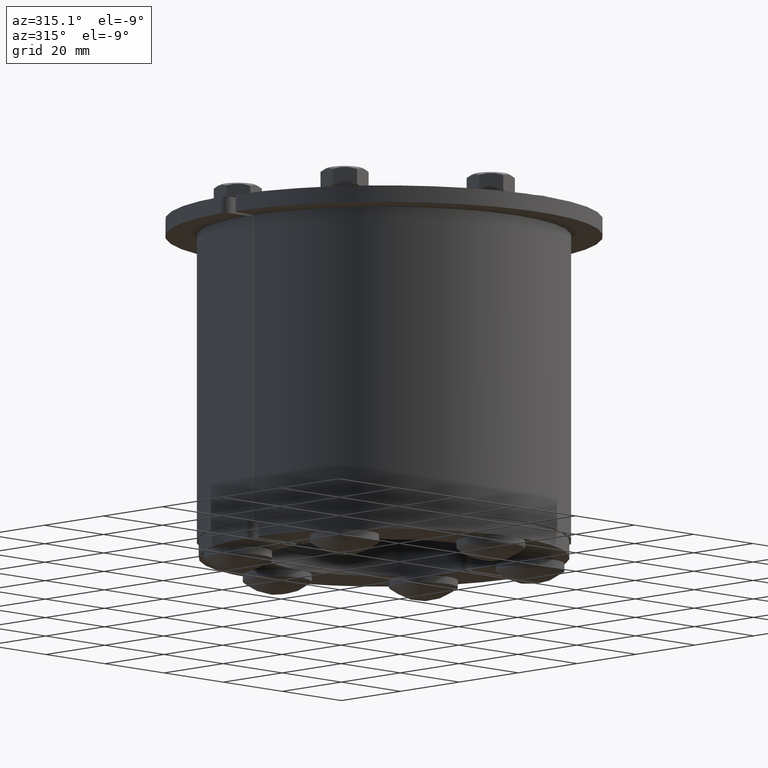
[diagram: clean part render]
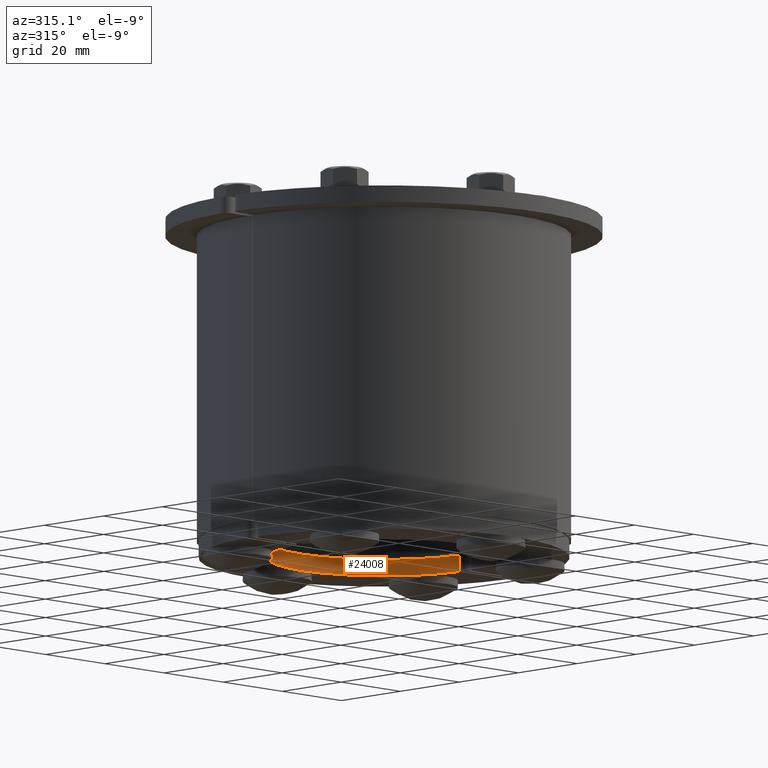
[diagram: same view with one face highlighted and labeled with its STEP entity id]
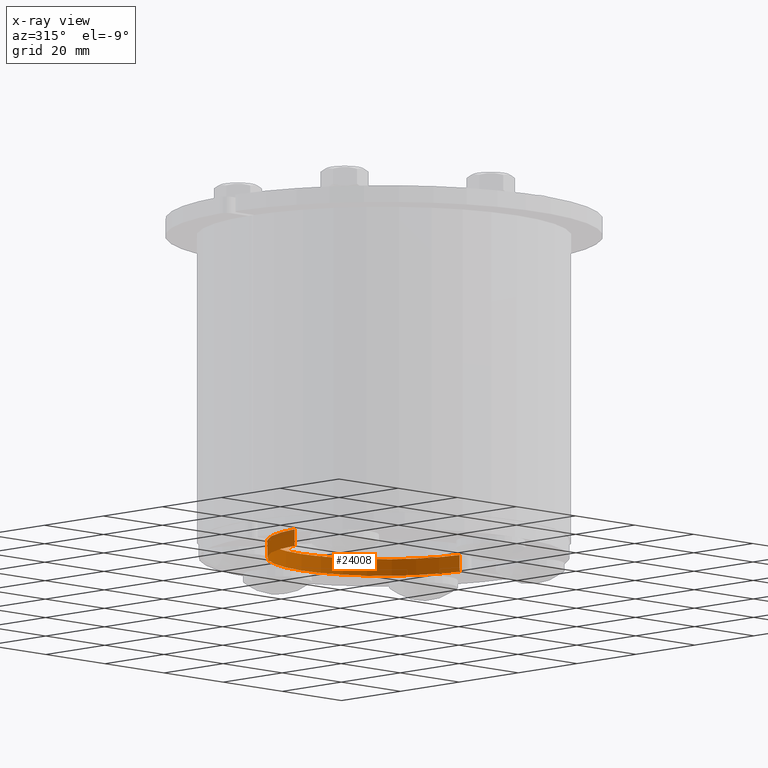
[diagram: x-ray of the same camera — body ghosted, the highlighted face saturated]
A machine part, auxiliary view. The second image highlights one B-rep face of the part: STEP entity #24008.
The next image is the same camera in x-ray: the body ghosted, the highlighted face saturated — about 3% of this face is hidden behind the body in this view.
In plain terms, the highlighted cylindrical surface (partial cylindrical patch) has radius 28 mm, axis along (0, 0, -1).
Its self-contained STEP definition (entity closure, byte-faithful):
#23764=CARTESIAN_POINT('',(-27.902608400569918,2.333333333333334,-4.0));
#23765=VERTEX_POINT('',#23764);
#23773=CARTESIAN_POINT('',(-27.902608400569918,2.333333333333334,0.0));
#23774=VERTEX_POINT('',#23773);
#23775=CARTESIAN_POINT('',(-27.902608400569925,2.333333333333334,-4.0));
#23776=DIRECTION('',(0.0,0.0,1.0));
#23777=VECTOR('',#23776,4.0);
#23778=LINE('',#23775,#23777);
#23779=EDGE_CURVE('',#23765,#23774,#23778,.T.);
#23836=CARTESIAN_POINT('',(27.902608400569918,2.333333333333332,0.0));
#23837=VERTEX_POINT('',#23836);
#23838=CARTESIAN_POINT('',(0.0,0.0,0.0));
#23839=DIRECTION('',(0.0,0.0,1.0));
#23840=DIRECTION('',(0.999840548512101,0.017857142857143,0.0));
#23841=AXIS2_PLACEMENT_3D('',#23838,#23839,#23840);
#23842=CIRCLE('',#23841,27.999999999999993);
#23843=EDGE_CURVE('',#23837,#23774,#23842,.T.);
#23964=CARTESIAN_POINT('',(27.902608400569918,2.333333333333332,-4.0));
#23965=VERTEX_POINT('',#23964);
#23982=CARTESIAN_POINT('',(27.902608400569928,2.333333333333333,0.0));
#23983=DIRECTION('',(0.0,0.0,-1.0));
#23984=VECTOR('',#23983,4.0);
#23985=LINE('',#23982,#23984);
#23986=EDGE_CURVE('',#23837,#23965,#23985,.T.);
#23991=CARTESIAN_POINT('',(0.0,0.0,0.0));
#23992=DIRECTION('',(0.0,0.0,-1.0));
#23993=DIRECTION('',(0.999840548512101,0.017857142857143,0.0));
#23994=AXIS2_PLACEMENT_3D('',#23991,#23992,#23993);
#23995=CYLINDRICAL_SURFACE('',#23994,27.999999999999993);
#23996=ORIENTED_EDGE('',*,*,#23779,.F.);
#23997=CARTESIAN_POINT('',(0.0,0.0,-4.0));
#23998=DIRECTION('',(0.0,0.0,1.0));
#23999=DIRECTION('',(0.999840548512101,0.017857142857143,0.0));
#24000=AXIS2_PLACEMENT_3D('',#23997,#23998,#23999);
#24001=CIRCLE('',#24000,27.999999999999993);
#24002=EDGE_CURVE('',#23965,#23765,#24001,.T.);
#24003=ORIENTED_EDGE('',*,*,#24002,.F.);
#24004=ORIENTED_EDGE('',*,*,#23986,.F.);
#24005=ORIENTED_EDGE('',*,*,#23843,.T.);
#24006=EDGE_LOOP('',(#23996,#24003,#24004,#24005));
#24007=FACE_OUTER_BOUND('',#24006,.T.);
#24008=ADVANCED_FACE('',(#24007),#23995,.F.);